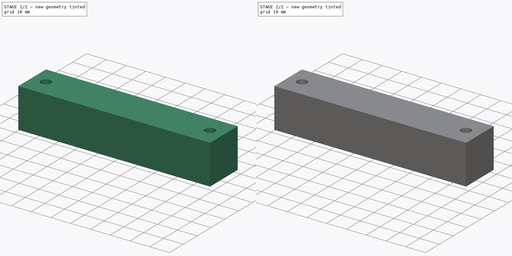
[diagram: build sequence overview — one tinted view per stage of 2, left to right]
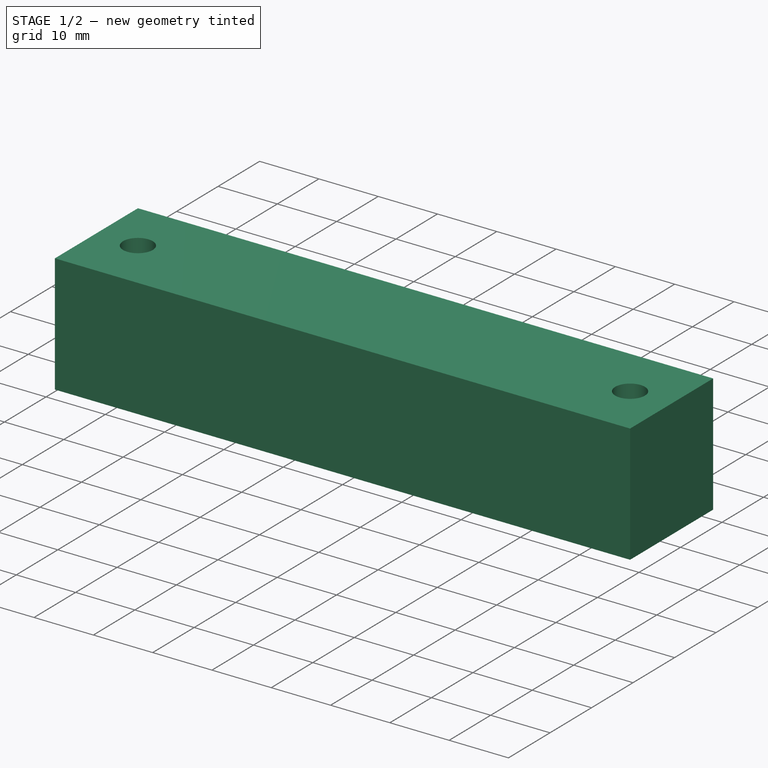
[diagram: stage 1 of 2 — iso view after this stage's code; geometry added in this stage tinted green]
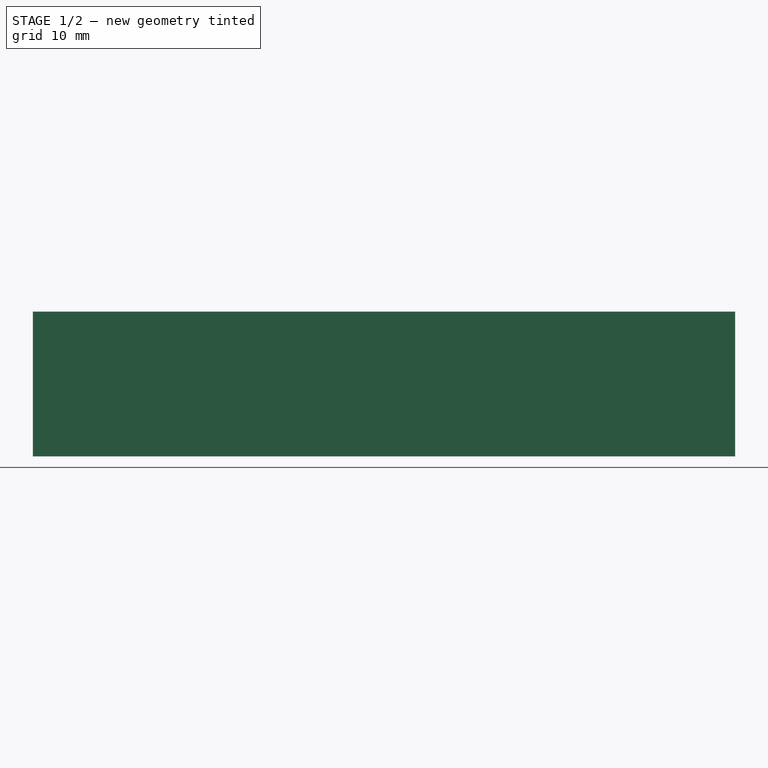
[diagram: stage 1 of 2 — front view after this stage's code; geometry added in this stage tinted green]
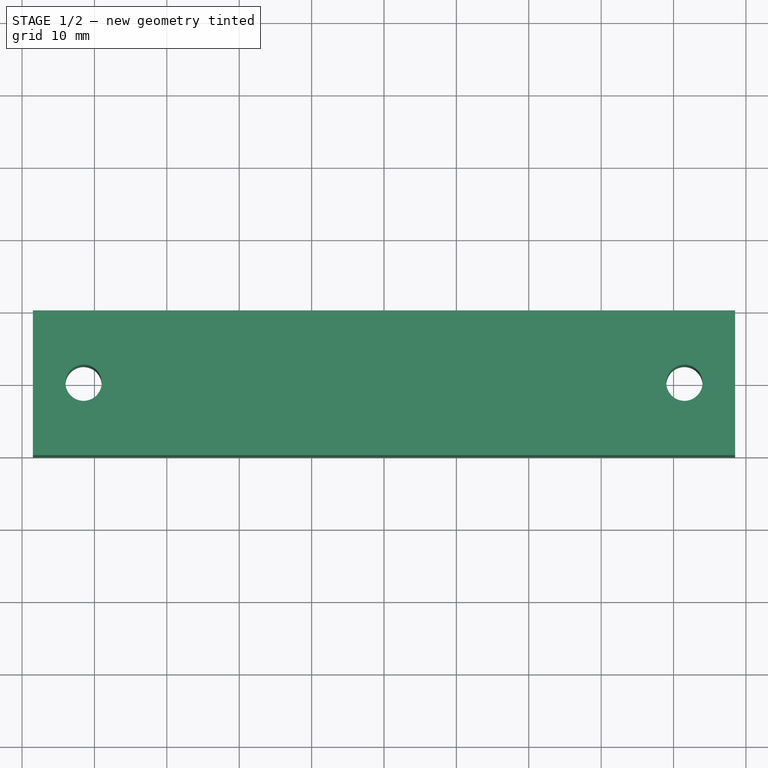
[diagram: stage 1 of 2 — top view after this stage's code; geometry added in this stage tinted green]
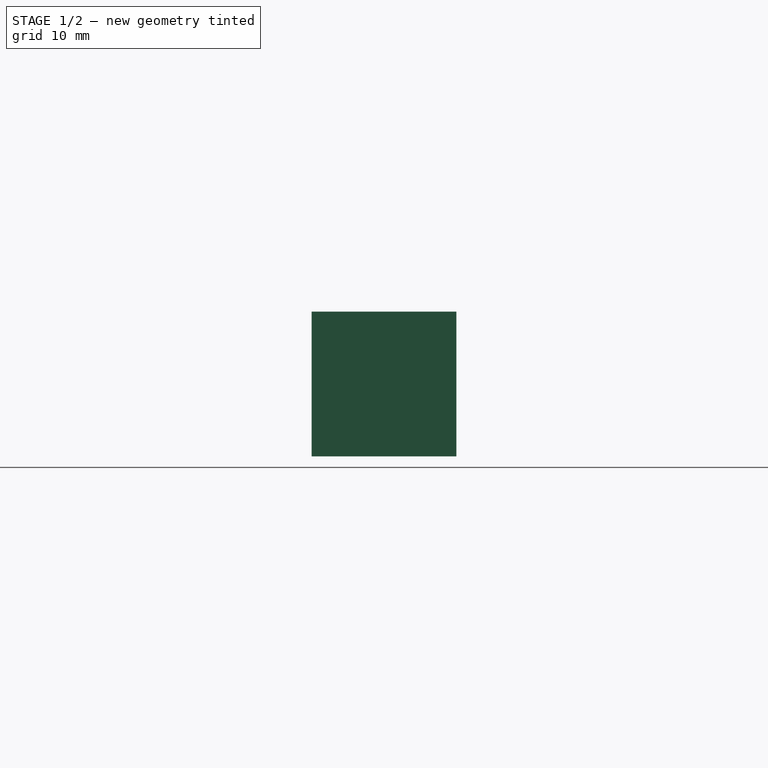
[diagram: stage 1 of 2 — right view after this stage's code; geometry added in this stage tinted green]
FCSTD DOCUMENT  (FreeCAD 0.15R4671 (Git))
Label: base-right-bottom
License: All rights reserved
LicenseURL: http://en.wikipedia.org/wiki/All_rights_reserved
objects: Drawing::FeatureView×8, Sketcher::SketchObject×2, Drawing::FeatureViewPart×2, PartDesign::Pad×1, PartDesign::Pocket×1, Drawing::FeaturePage×1
note: 6 computed .brp shape members not serialized (recipe doc carries the construction recipe); baked Part::Feature solids carry a one-line shape summary decoded from their .brp

FEATURE [Sketcher::SketchObject] Sketch  label="main-sketch"
  sketch-geometry (6):
    g0: LineSegment StartX=-48.5 StartY=10 StartZ=0 EndX=48.5 EndY=10 EndZ=0
    g1: LineSegment StartX=48.5 StartY=10 StartZ=0 EndX=48.5 EndY=-10 EndZ=0
    g2: LineSegment StartX=48.5 StartY=-10 StartZ=0 EndX=-48.5 EndY=-10 EndZ=0
    g3: LineSegment StartX=-48.5 StartY=-10 StartZ=0 EndX=-48.5 EndY=10 EndZ=0
    g4: Circle CenterX=-41.5 CenterY=0 CenterZ=0 NormalX=0 NormalY=0 NormalZ=1 Radius=2.5
    g5: Circle CenterX=41.5 CenterY=0 CenterZ=0 NormalX=0 NormalY=0 NormalZ=1 Radius=2.5
  constraints (18):
    c: Coincident(g0,g1)
    c: Coincident(g1,g2)
    c: Coincident(g2,g3)
    c: Coincident(g3,g0)
    c: Horizontal(g0)
    c: Horizontal(g2)
    c: Vertical(g1)
    c: Vertical(g3)
    c: Symmetric(g0,g0,g-2)
    c: Symmetric(g1,g0,g-1)
    c: PointOnObject(g4,g-1)
    c: PointOnObject(g5,g-1)
    c: Symmetric(g5,g4,g-2)
    c: Radius(g4) = 2.5
    c: Equal(g4,g5)
    c: DistanceY(g0,g1) = -20
    c: DistanceX(g4,g5) = 83
    c: DistanceX(g2,g1) = 97
FEATURE [PartDesign::Pad] Pad  label="main"
  Length = 20
  Length2 = 100
  Sketch = -> Sketch
  Type = 0
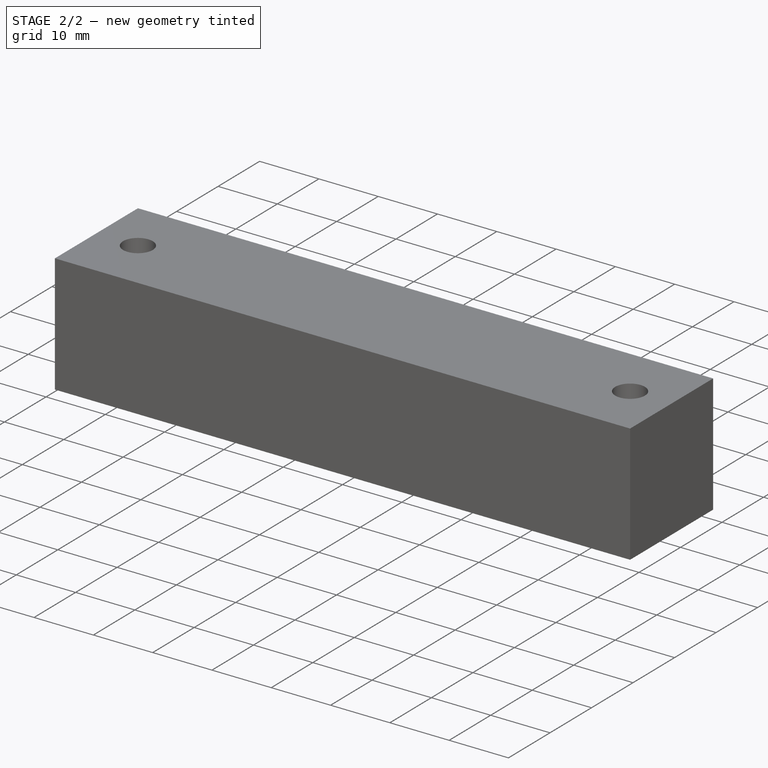
[diagram: stage 2 of 2 — iso view after this stage's code; geometry added in this stage tinted green]
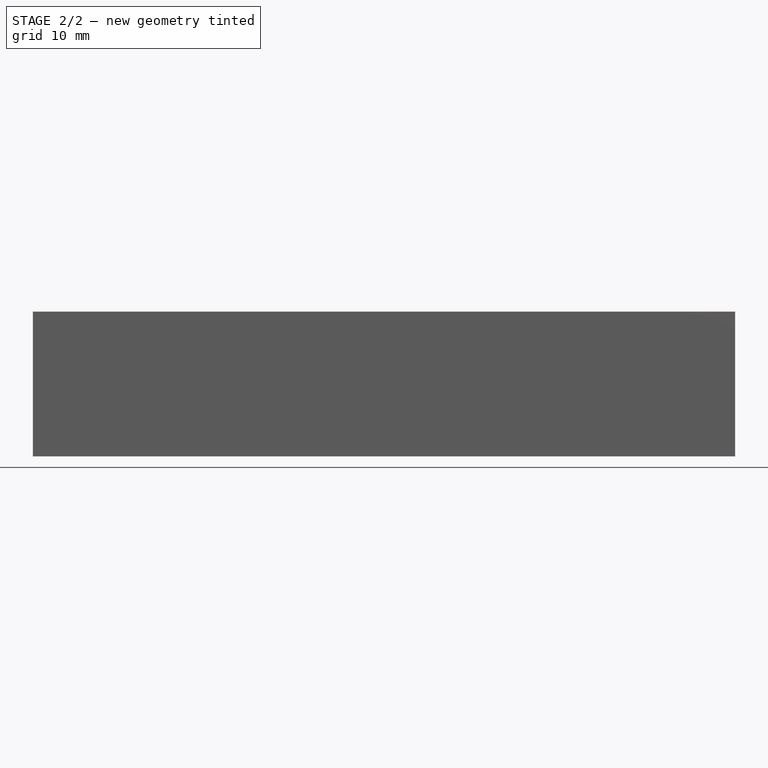
[diagram: stage 2 of 2 — front view after this stage's code; geometry added in this stage tinted green]
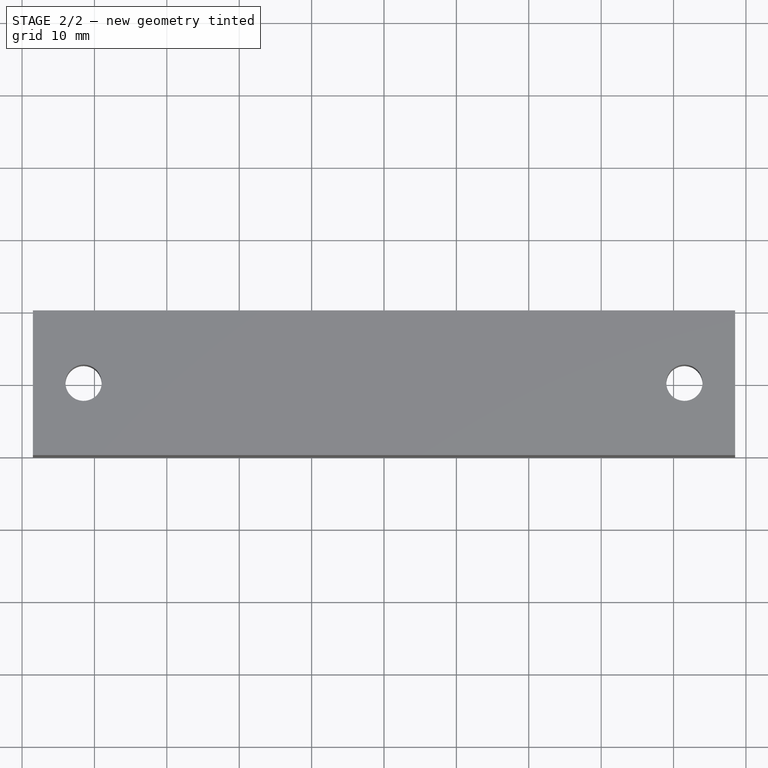
[diagram: stage 2 of 2 — top view after this stage's code; geometry added in this stage tinted green]
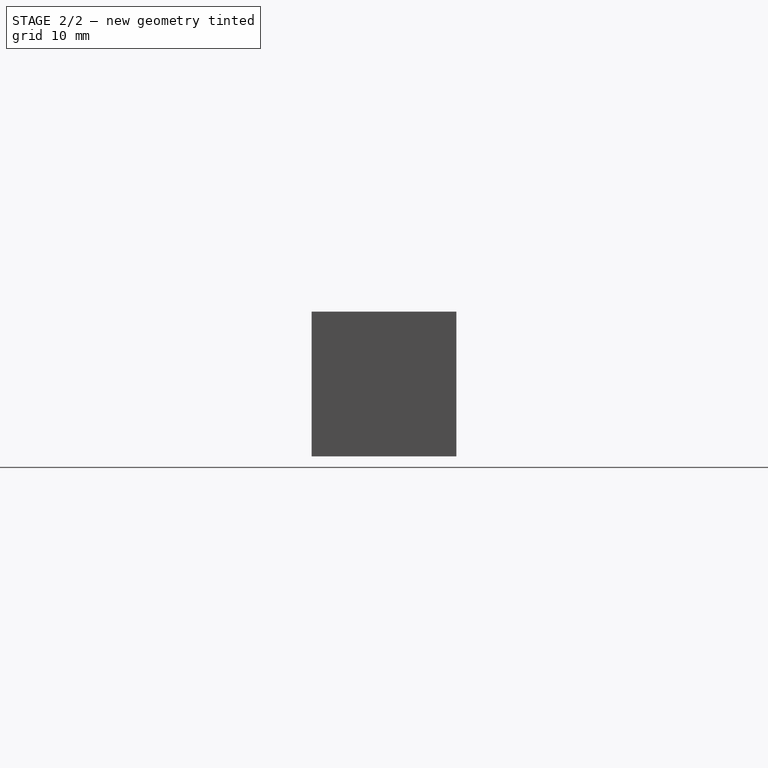
[diagram: stage 2 of 2 — right view after this stage's code; geometry added in this stage tinted green]
FEATURE [Sketcher::SketchObject] Sketch001  label="bottom-holes-sketch"
  Placement = pos=(0,0,0) rot=(1,0,0;3.14159rad)
  Support = -> Pad [Face7]
  sketch-geometry (2):
    g0: Circle CenterX=-41.5 CenterY=0 CenterZ=0 NormalX=0 NormalY=0 NormalZ=1 Radius=5
    g1: Circle CenterX=41.5 CenterY=0 CenterZ=0 NormalX=0 NormalY=0 NormalZ=1 Radius=5
  constraints (6):
    c: PointOnObject(g0,g-1)
    c: PointOnObject(g1,g-1)
    c: Radius(g1) = 5
    c: Equal(g1,g0)
    c: Symmetric(g0,g1,g-2)
    c: DistanceX(g0,g1) = 83
FEATURE [PartDesign::Pocket] Pocket  label="base-right-bottom"
  Length = 8
  Sketch = -> Sketch001
  Type = 0
FEATURE [Drawing::FeatureViewPart] Ortho  label="Ortho_0_0"
  Direction = (0,-1,0)
  HiddenWidth = 0.15
  LineWidth = 0.35
  Rotation = 90
  Scale = 1.5
  ShowHiddenLines = true
  ShowSmoothLines = false
  Source = -> Pocket
  Tolerance = 0.05
  ViewResult = <blob: 4549 chars omitted>
  Visible = true
  X = 105
  Y = 218
FEATURE [Drawing::FeatureViewPart] Ortho001  label="Ortho_0_1"
  Direction = (0,0,1)
  HiddenWidth = 0.15
  LineWidth = 0.35
  Rotation = 0
  Scale = 1.5
  ShowHiddenLines = true
  ShowSmoothLines = false
  Source = -> Pocket
  Tolerance = 0.05
  ViewResult = <g id="Ortho_0_1"\n   transform="rotate(0,105,94) translate(105,94) scale(1.5,1.5)"\n  >\n<g   stroke="rgb(0, 0, 0)"\n   stroke-width="0.1"\n   stroke-linecap="butt"\n   stroke-linejoin="miter"\n   stroke-dasharray="0.2,0.1"\n   fill="none"\n   transform="scale(1,-1)"\n  >\n<path id= "1" d=" M -48.5 10 L 48.5 10 " />\n<path id= "2" d=" M -48.5 -10 L -48.5 10 " />\n<path id= "3" d=" M 48.5 10 L 48.5 -10 " />\n<path id= "4" d=" M 48.5 -10 L -48.5 -10 " />\n<circle cx ="-41.5" cy ="0" r ="5" /><circle cx ="41.5" cy ="0" r ="5" /><circle cx ="-41.5" cy ="0" r ="5" /><circle cx ="41.5" cy ="0" r ="5" /><circle cx ="41.5" cy ="0" r ="2.5" /><circle cx ="-41.5" cy ="0" r ="2.5" /></g>\n<g   stroke="rgb(0, 0, 0)"\n   stroke-width="0.233333"\n   stroke-linecap="butt"\n   stroke-linejoin="miter"\n   fill="none"\n   transform="scale(1,-1)"\n  >\n<path id= "1" d=" M -48.5 10 L 48.5 10 " />\n<path id= "2" d=" M -48.5 -10 L -48.5 10 " />\n<path id= "3" d=" M 48.5 10 L 48.5 -10 " />\n<path id= "4" d=" M 48.5 -10 L -48.5 -10 " />\n<circle cx ="41.5" cy ="0" r ="2.5" /><circle cx ="-41.5" cy ="0" r ="2.5" /></g>\n</g>
  Visible = true
  X = 105
  Y = 94
FEATURE [Drawing::FeatureView] dim001
  Rotation = 0
  ViewResult = <g> \n  <line x1="42.750000" y1="96.000000" x2="42.750000" y2="125.659242" style="stroke:rgb(0,0,255);stroke-width:0.50" />\n<line x1="167.250000" y1="96.000000" x2="167.250000" y2="125.659242" style="stroke:rgb(0,0,255);stroke-width:0.50" />\n<line x1="42.750000" y1="124.659242" x2="167.250000" y2="124.659242" style="stroke:rgb(0,0,255);stroke-width:0.50" /> \n  <polygon points="167.250000,124.659242 164.250000,123.659242 163.250000,124.659242 164.250000,125.659242" style="fill:rgb(0,0,255);stroke:rgb(0,0,255);stroke-width:0" /><polygon points="42.750000,124.659242 45.750000,125.659242 46.750000,124.659242 45.750000,123.659242" style="fill:rgb(0,0,255);stroke:rgb(0,0,255);stroke-width:0" /> \n  <text x="105.000000" y="122.659242" font-family="inherit" font-size="3.6" fill="rgb(0,0,255)" text-anchor="middle" transform="rotate(0.000000 105.000000,122.659242)" >83</text> </g>
  Visible = true
  X = 0
  Y = 0
FEATURE [Drawing::FeatureView] dim002
  Rotation = 0
  ViewResult = <g> \n  <line x1="32.250000" y1="111.000000" x2="32.250000" y2="137.731505" style="stroke:rgb(0,0,255);stroke-width:0.50" />\n<line x1="177.750000" y1="111.000000" x2="177.750000" y2="137.731505" style="stroke:rgb(0,0,255);stroke-width:0.50" />\n<line x1="32.250000" y1="136.731505" x2="177.750000" y2="136.731505" style="stroke:rgb(0,0,255);stroke-width:0.50" /> \n  <polygon points="177.750000,136.731505 174.750000,135.731505 173.750000,136.731505 174.750000,137.731505" style="fill:rgb(0,0,255);stroke:rgb(0,0,255);stroke-width:0" /><polygon points="32.250000,136.731505 35.250000,137.731505 36.250000,136.731505 35.250000,135.731505" style="fill:rgb(0,0,255);stroke:rgb(0,0,255);stroke-width:0" /> \n  <text x="105.000000" y="134.731505" font-family="inherit" font-size="3.6" fill="rgb(0,0,255)" text-anchor="middle" transform="rotate(0.000000 105.000000,134.731505)" >97</text> </g>
  Visible = true
  X = 0
  Y = 0
FEATURE [Drawing::FeatureView] dim003
  Rotation = 0
  ViewResult = <g> \n  <line x1="30.250000" y1="79.000000" x2="17.895717" y2="79.000000" style="stroke:rgb(0,0,255);stroke-width:0.50" />\n<line x1="30.250000" y1="109.000000" x2="17.895717" y2="109.000000" style="stroke:rgb(0,0,255);stroke-width:0.50" />\n<line x1="18.895717" y1="79.000000" x2="18.895717" y2="109.000000" style="stroke:rgb(0,0,255);stroke-width:0.50" /> \n  <polygon points="18.895717,109.000000 19.895717,106.000000 18.895717,105.000000 17.895717,106.000000" style="fill:rgb(0,0,255);stroke:rgb(0,0,255);stroke-width:0" /><polygon points="18.895717,79.000000 17.895717,82.000000 18.895717,83.000000 19.895717,82.000000" style="fill:rgb(0,0,255);stroke:rgb(0,0,255);stroke-width:0" /> \n  <text x="16.895717" y="94.000000" font-family="inherit" font-size="3.6" fill="rgb(0,0,255)" text-anchor="middle" transform="rotate(-90.000000 16.895717,94.000000)" >20</text> </g>
  Visible = true
  X = 0
  Y = 0
FEATURE [Drawing::FeatureView] dim004
  Rotation = 0
  ViewResult = <g> \n  <line x1="33.250000" y1="206.000000" x2="22.388795" y2="206.000000" style="stroke:rgb(0,0,255);stroke-width:0.50" />\n<line x1="33.250000" y1="218.000000" x2="22.388795" y2="218.000000" style="stroke:rgb(0,0,255);stroke-width:0.50" />\n<line x1="23.388795" y1="206.000000" x2="23.388795" y2="218.000000" style="stroke:rgb(0,0,255);stroke-width:0.50" /> \n  <polygon points="23.388795,218.000000 24.388795,215.000000 23.388795,214.000000 22.388795,215.000000" style="fill:rgb(0,0,255);stroke:rgb(0,0,255);stroke-width:0" /><polygon points="23.388795,206.000000 22.388795,209.000000 23.388795,210.000000 24.388795,209.000000" style="fill:rgb(0,0,255);stroke:rgb(0,0,255);stroke-width:0" /> \n  <text x="21.388795" y="212.000000" font-family="inherit" font-size="3.6" fill="rgb(0,0,255)" text-anchor="middle" transform="rotate(-90.000000 21.388795,212.000000)" >8</text> </g>
  Visible = true
  X = 0
  Y = 0
FEATURE [Drawing::FeatureView] dim005
  Rotation = 0
  ViewResult = <g> \n  <line x1="30.250000" y1="188.000000" x2="8.112518" y2="188.000000" style="stroke:rgb(0,0,255);stroke-width:0.50" />\n<line x1="30.250000" y1="218.000000" x2="8.112518" y2="218.000000" style="stroke:rgb(0,0,255);stroke-width:0.50" />\n<line x1="9.112518" y1="188.000000" x2="9.112518" y2="218.000000" style="stroke:rgb(0,0,255);stroke-width:0.50" /> \n  <polygon points="9.112518,218.000000 10.112518,215.000000 9.112518,214.000000 8.112518,215.000000" style="fill:rgb(0,0,255);stroke:rgb(0,0,255);stroke-width:0" /><polygon points="9.112518,188.000000 8.112518,191.000000 9.112518,192.000000 10.112518,191.000000" style="fill:rgb(0,0,255);stroke:rgb(0,0,255);stroke-width:0" /> \n  <text x="7.112518" y="203.000000" font-family="inherit" font-size="3.6" fill="rgb(0,0,255)" text-anchor="middle" transform="rotate(-90.000000 7.112518,203.000000)" >20</text> </g>
  Visible = true
  X = 0
  Y = 0
FEATURE [Drawing::FeatureView] dim006
  Rotation = 0
  ViewResult = <g> \n  <line x1="35.250000" y1="220.000000" x2="35.250000" y2="228.918410" style="stroke:rgb(0,0,255);stroke-width:0.50" />\n<line x1="50.250000" y1="220.000000" x2="50.250000" y2="228.918410" style="stroke:rgb(0,0,255);stroke-width:0.50" />\n<line x1="35.250000" y1="227.918410" x2="50.250000" y2="227.918410" style="stroke:rgb(0,0,255);stroke-width:0.50" /> \n  <polygon points="50.250000,227.918410 47.250000,226.918410 46.250000,227.918410 47.250000,228.918410" style="fill:rgb(0,0,255);stroke:rgb(0,0,255);stroke-width:0" /><polygon points="35.250000,227.918410 38.250000,228.918410 39.250000,227.918410 38.250000,226.918410" style="fill:rgb(0,0,255);stroke:rgb(0,0,255);stroke-width:0" /> \n  <text x="42.750000" y="225.918410" font-family="inherit" font-size="3.6" fill="rgb(0,0,255)" text-anchor="middle"  >2 x Ø10</text> </g>
  Visible = true
  X = 0
  Y = 0
FEATURE [Drawing::FeatureView] dim007
  Rotation = 0
  ViewResult = <g> \n  <line x1="39.000000" y1="186.000000" x2="39.000000" y2="177.117153" style="stroke:rgb(0,0,255);stroke-width:0.50" />\n<line x1="46.500000" y1="186.000000" x2="46.500000" y2="177.117153" style="stroke:rgb(0,0,255);stroke-width:0.50" />\n<line x1="39.000000" y1="178.117153" x2="46.500000" y2="178.117153" style="stroke:rgb(0,0,255);stroke-width:0.50" /> \n  <polygon points="46.500000,178.117153 49.500000,179.117153 50.500000,178.117153 49.500000,177.117153" style="fill:rgb(0,0,255);stroke:rgb(0,0,255);stroke-width:0" /><polygon points="39.000000,178.117153 36.000000,177.117153 35.000000,178.117153 36.000000,179.117153" style="fill:rgb(0,0,255);stroke:rgb(0,0,255);stroke-width:0" /> \n  <text x="42.750000" y="176.117153" font-family="inherit" font-size="3.6" fill="rgb(0,0,255)" text-anchor="middle"  >2 x Ø5</text> </g>
  Visible = true
  X = 0
  Y = 0
FEATURE [Drawing::FeatureView] dim008
  Rotation = 0
  ViewResult = <g> \n  <line x1="42.750000" y1="96.000000" x2="42.750000" y2="125.625372" style="stroke:rgb(0,0,255);stroke-width:0.50" />\n<line x1="32.250000" y1="111.000000" x2="32.250000" y2="125.625372" style="stroke:rgb(0,0,255);stroke-width:0.50" />\n<line x1="42.750000" y1="124.625372" x2="32.250000" y2="124.625372" style="stroke:rgb(0,0,255);stroke-width:0.50" /> \n  <polygon points="32.250000,124.625372 35.250000,125.625372 36.250000,124.625372 35.250000,123.625372" style="fill:rgb(0,0,255);stroke:rgb(0,0,255);stroke-width:0" /><polygon points="42.750000,124.625372 39.750000,123.625372 38.750000,124.625372 39.750000,125.625372" style="fill:rgb(0,0,255);stroke:rgb(0,0,255);stroke-width:0" /> \n  <text x="37.500000" y="122.625372" font-family="inherit" font-size="3.6" fill="rgb(0,0,255)" text-anchor="middle" transform="rotate(0.000000 37.500000,122.625372)" >7</text> </g>
  Visible = true
  X = 0
  Y = 0
FEATURE [Drawing::FeaturePage] Page
  Group = -> [Ortho,Ortho001,dim001,dim002,dim003,dim004,dim005,dim006,dim007,dim008]
  Template = <path>
note: 1 file-system path scrubbed to <path> (originals preserved in the JSON sidecar)
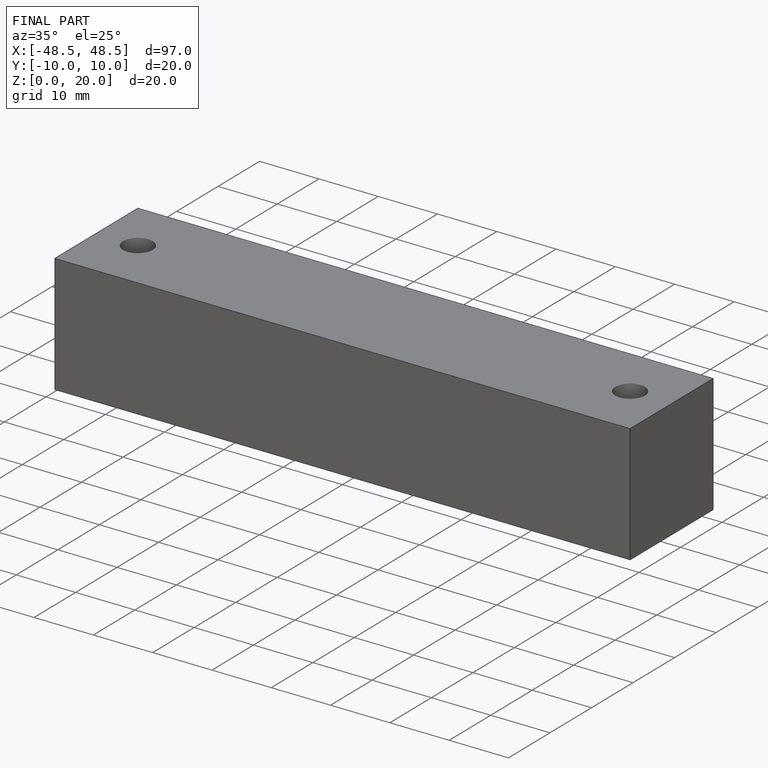
[diagram: finished part — iso view with bounding-box wireframe]
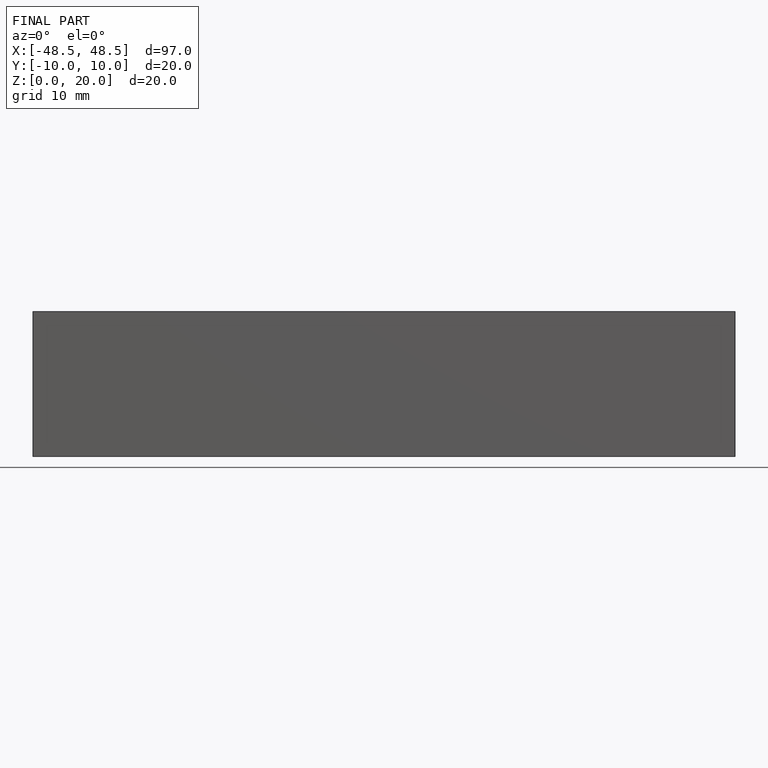
[diagram: finished part — front view with bounding-box wireframe]
